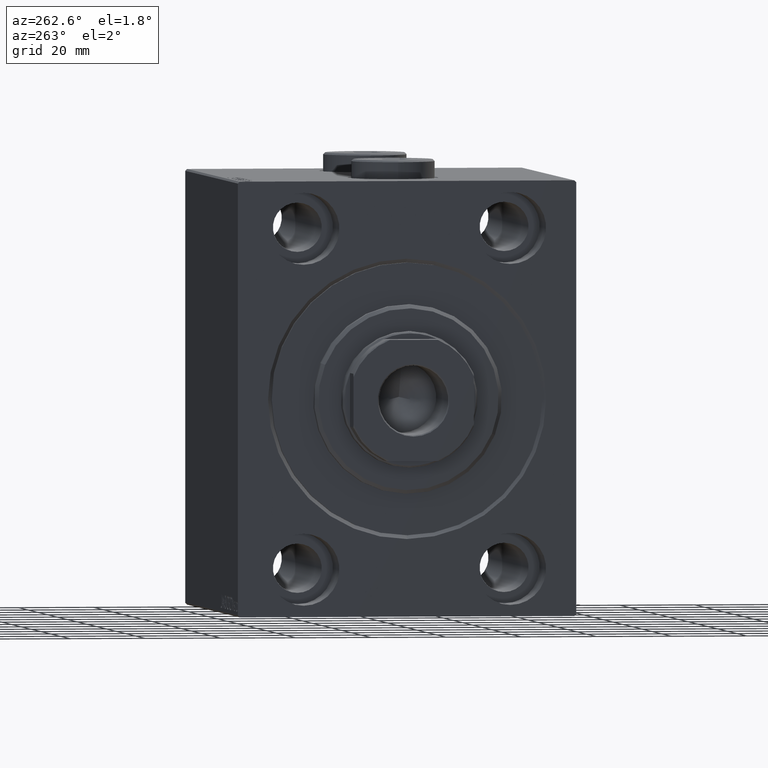
[diagram: clean part render]
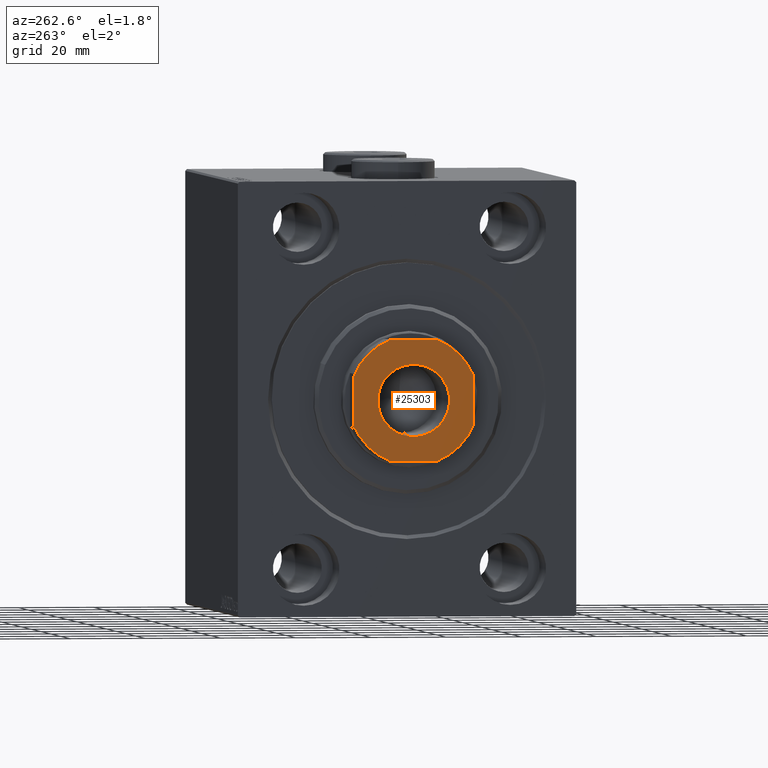
[diagram: same view with one face highlighted and labeled with its STEP entity id]
A machine part, auxiliary view. The second image highlights one B-rep face of the part: STEP entity #25303.
In plain terms, the highlighted planar face has unit normal (-1, 0, 0).
Its self-contained STEP definition (entity closure, byte-faithful):
#196 = ORIENTED_EDGE ( 'NONE', *, *, #11759, .T. ) ;
#198 = VERTEX_POINT ( 'NONE', #41382 ) ;
#255 = CARTESIAN_POINT ( 'NONE',  ( 0.000000000000000000, 0.000000000000000000, 104.0000000000000142 ) ) ;
#564 = VERTEX_POINT ( 'NONE', #40388 ) ;
#1068 = DIRECTION ( 'NONE',  ( -0.000000000000000000, 0.000000000000000000, 1.000000000000000000 ) ) ;
#1507 = DIRECTION ( 'NONE',  ( 1.000000000000000000, 0.000000000000000000, 0.000000000000000000 ) ) ;
#1651 = ORIENTED_EDGE ( 'NONE', *, *, #24020, .T. ) ;
#1779 = EDGE_CURVE ( 'NONE', #22317, #16986, #27074, .T. ) ;
#1941 = DIRECTION ( 'NONE',  ( 1.000000000000000000, 0.000000000000000000, 0.000000000000000000 ) ) ;
#2115 = ORIENTED_EDGE ( 'NONE', *, *, #40957, .T. ) ;
#3386 = ORIENTED_EDGE ( 'NONE', *, *, #20344, .T. ) ;
#4233 = CARTESIAN_POINT ( 'NONE',  ( 16.00000000000000000, 6.311893535223851437, 104.0000000000000142 ) ) ;
#4674 = ORIENTED_EDGE ( 'NONE', *, *, #9438, .T. ) ;
#4938 = CARTESIAN_POINT ( 'NONE',  ( 0.000000000000000000, 0.000000000000000000, 104.0000000000000142 ) ) ;
#5373 = DIRECTION ( 'NONE',  ( -0.000000000000000000, 0.000000000000000000, 1.000000000000000000 ) ) ;
#5447 = CARTESIAN_POINT ( 'NONE',  ( -6.311893535223715546, 16.00000000000000000, 104.0000000000000142 ) ) ;
#6009 = ORIENTED_EDGE ( 'NONE', *, *, #9994, .T. ) ;
#6242 = VERTEX_POINT ( 'NONE', #4233 ) ;
#6885 = CARTESIAN_POINT ( 'NONE',  ( 0.000000000000000000, 0.000000000000000000, 104.0000000000000142 ) ) ;
#7275 = VERTEX_POINT ( 'NONE', #18110 ) ;
#7455 = CIRCLE ( 'NONE', #33036, 17.20000000000001705 ) ;
#8797 = LINE ( 'NONE', #16102, #43745 ) ;
#8959 = AXIS2_PLACEMENT_3D ( 'NONE', #26036, #29934, #25601 ) ;
#8983 = ORIENTED_EDGE ( 'NONE', *, *, #1779, .T. ) ;
#9438 = EDGE_CURVE ( 'NONE', #6242, #198, #7455, .T. ) ;
#9461 = DIRECTION ( 'NONE',  ( 1.000000000000000000, 0.000000000000000000, 0.000000000000000000 ) ) ;
#9706 = LINE ( 'NONE', #41260, #14783 ) ;
#9838 = DIRECTION ( 'NONE',  ( 1.000000000000000000, 0.000000000000000000, 0.000000000000000000 ) ) ;
#9994 = EDGE_CURVE ( 'NONE', #7275, #564, #12757, .T. ) ;
#11066 = EDGE_CURVE ( 'NONE', #16986, #22317, #29410, .T. ) ;
#11759 = EDGE_CURVE ( 'NONE', #41762, #7275, #38951, .T. ) ;
#12757 = LINE ( 'NONE', #37011, #27205 ) ;
#14210 = DIRECTION ( 'NONE',  ( -0.000000000000000000, 0.000000000000000000, 1.000000000000000000 ) ) ;
#14579 = DIRECTION ( 'NONE',  ( -1.000000000000000000, -0.000000000000000000, -0.000000000000000000 ) ) ;
#14783 = VECTOR ( 'NONE', #23413, 1000.000000000000000 ) ;
#15235 = CIRCLE ( 'NONE', #26917, 17.20000000000000995 ) ;
#16102 = CARTESIAN_POINT ( 'NONE',  ( 16.00000000000000000, 16.00000000000000000, 104.0000000000000142 ) ) ;
#16228 = AXIS2_PLACEMENT_3D ( 'NONE', #38821, #31730, #21408 ) ;
#16338 = VERTEX_POINT ( 'NONE', #43498 ) ;
#16468 = DIRECTION ( 'NONE',  ( 0.000000000000000000, -0.000000000000000000, -1.000000000000000000 ) ) ;
#16986 = VERTEX_POINT ( 'NONE', #24744 ) ;
#17892 = VERTEX_POINT ( 'NONE', #37816 ) ;
#18110 = CARTESIAN_POINT ( 'NONE',  ( -15.99999999999999645, 6.311893535223721763, 104.0000000000000142 ) ) ;
#18283 = AXIS2_PLACEMENT_3D ( 'NONE', #34565, #16468, #9838 ) ;
#19370 = DIRECTION ( 'NONE',  ( 2.168404344971008868E-16, -1.000000000000000000, 0.000000000000000000 ) ) ;
#20184 = FACE_OUTER_BOUND ( 'NONE', #40772, .T. ) ;
#20344 = EDGE_CURVE ( 'NONE', #17892, #37013, #45047, .T. ) ;
#21408 = DIRECTION ( 'NONE',  ( 1.000000000000000000, 0.000000000000000000, 0.000000000000000000 ) ) ;
#21910 = CARTESIAN_POINT ( 'NONE',  ( 16.00000000000000355, -6.311893535223839891, 104.0000000000000142 ) ) ;
#21994 = ORIENTED_EDGE ( 'NONE', *, *, #11066, .T. ) ;
#22317 = VERTEX_POINT ( 'NONE', #43899 ) ;
#22737 = DIRECTION ( 'NONE',  ( -1.084202172485504434E-16, 1.000000000000000000, -0.000000000000000000 ) ) ;
#23413 = DIRECTION ( 'NONE',  ( 1.000000000000000000, 0.000000000000000000, 0.000000000000000000 ) ) ;
#24020 = EDGE_CURVE ( 'NONE', #198, #41762, #34956, .T. ) ;
#24071 = FACE_BOUND ( 'NONE', #39088, .T. ) ;
#24744 = CARTESIAN_POINT ( 'NONE',  ( 9.550000000000002487, 0.000000000000000000, 104.0000000000000142 ) ) ;
#25303 = ADVANCED_FACE ( 'NONE', ( #24071, #20184 ), #38049, .T. ) ;
#25601 = DIRECTION ( 'NONE',  ( 1.000000000000000000, 0.000000000000000000, 0.000000000000000000 ) ) ;
#26036 = CARTESIAN_POINT ( 'NONE',  ( 0.000000000000000000, 0.000000000000000000, 104.0000000000000142 ) ) ;
#26040 = AXIS2_PLACEMENT_3D ( 'NONE', #255, #14210, #38932 ) ;
#26069 = AXIS2_PLACEMENT_3D ( 'NONE', #37821, #30285, #9461 ) ;
#26917 = AXIS2_PLACEMENT_3D ( 'NONE', #6885, #5373, #1941 ) ;
#27074 = CIRCLE ( 'NONE', #18283, 9.550000000000002487 ) ;
#27205 = VECTOR ( 'NONE', #19370, 1000.000000000000000 ) ;
#28079 = CARTESIAN_POINT ( 'NONE',  ( -16.00000000000000000, 16.00000000000000000, 104.0000000000000142 ) ) ;
#29410 = CIRCLE ( 'NONE', #16228, 9.550000000000002487 ) ;
#29934 = DIRECTION ( 'NONE',  ( -0.000000000000000000, 0.000000000000000000, 1.000000000000000000 ) ) ;
#30285 = DIRECTION ( 'NONE',  ( -0.000000000000000000, 0.000000000000000000, 1.000000000000000000 ) ) ;
#30516 = VECTOR ( 'NONE', #14579, 1000.000000000000000 ) ;
#30835 = EDGE_CURVE ( 'NONE', #564, #16338, #15235, .T. ) ;
#30874 = EDGE_CURVE ( 'NONE', #37013, #6242, #8797, .T. ) ;
#31071 = ORIENTED_EDGE ( 'NONE', *, *, #30874, .T. ) ;
#31730 = DIRECTION ( 'NONE',  ( 0.000000000000000000, -0.000000000000000000, -1.000000000000000000 ) ) ;
#33036 = AXIS2_PLACEMENT_3D ( 'NONE', #4938, #1068, #1507 ) ;
#34565 = CARTESIAN_POINT ( 'NONE',  ( 0.000000000000000000, 0.000000000000000000, 104.0000000000000142 ) ) ;
#34956 = LINE ( 'NONE', #28079, #30516 ) ;
#37011 = CARTESIAN_POINT ( 'NONE',  ( -16.00000000000000000, 16.00000000000000000, 104.0000000000000142 ) ) ;
#37013 = VERTEX_POINT ( 'NONE', #21910 ) ;
#37816 = CARTESIAN_POINT ( 'NONE',  ( 6.311893535223840779, -16.00000000000000000, 104.0000000000000142 ) ) ;
#37821 = CARTESIAN_POINT ( 'NONE',  ( 0.000000000000000000, 0.000000000000000000, 104.0000000000000142 ) ) ;
#38049 = PLANE ( 'NONE',  #26069 ) ;
#38821 = CARTESIAN_POINT ( 'NONE',  ( 0.000000000000000000, 0.000000000000000000, 104.0000000000000142 ) ) ;
#38932 = DIRECTION ( 'NONE',  ( 1.000000000000000000, 0.000000000000000000, 0.000000000000000000 ) ) ;
#38951 = CIRCLE ( 'NONE', #8959, 17.19999999999996732 ) ;
#39088 = EDGE_LOOP ( 'NONE', ( #21994, #8983 ) ) ;
#40388 = CARTESIAN_POINT ( 'NONE',  ( -15.99999999999999645, -6.311893535223839891, 104.0000000000000142 ) ) ;
#40772 = EDGE_LOOP ( 'NONE', ( #31071, #4674, #1651, #196, #6009, #43360, #2115, #3386 ) ) ;
#40957 = EDGE_CURVE ( 'NONE', #16338, #17892, #9706, .T. ) ;
#41260 = CARTESIAN_POINT ( 'NONE',  ( -15.99999999999999289, -16.00000000000000000, 104.0000000000000142 ) ) ;
#41382 = CARTESIAN_POINT ( 'NONE',  ( 6.311893535223850549, 16.00000000000000000, 104.0000000000000142 ) ) ;
#41762 = VERTEX_POINT ( 'NONE', #5447 ) ;
#43360 = ORIENTED_EDGE ( 'NONE', *, *, #30835, .T. ) ;
#43498 = CARTESIAN_POINT ( 'NONE',  ( -6.311893535223827456, -16.00000000000000000, 104.0000000000000142 ) ) ;
#43745 = VECTOR ( 'NONE', #22737, 1000.000000000000000 ) ;
#43899 = CARTESIAN_POINT ( 'NONE',  ( -9.550000000000002487, 1.169537693185722558E-15, 104.0000000000000142 ) ) ;
#45047 = CIRCLE ( 'NONE', #26040, 17.20000000000001350 ) ;